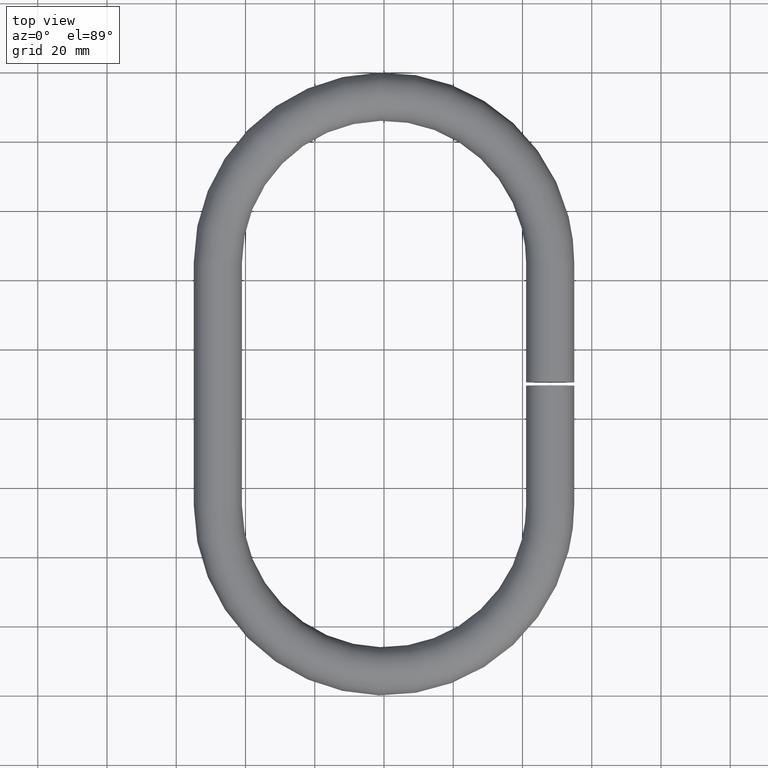
[diagram: clean part render]
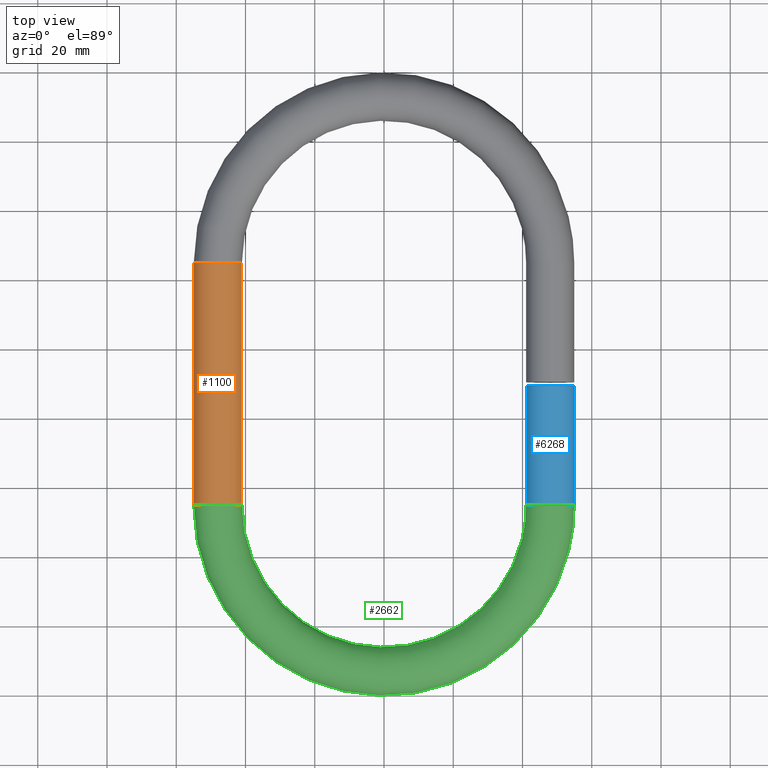
[diagram: same view with three faces highlighted in distinct colors, each labeled with its STEP entity id]
A machine part, top view with three faces highlighted in distinct colors.
Their STEP definitions:

[orange] entity #1100 — the highlighted cylindrical surface (bore or boss wall) has radius 7 mm, axis along (-0, 1, 0).
#3 = AXIS2_PLACEMENT_3D ( 'NONE', #5971, #1905, #3555 ) ;
#117 = EDGE_LOOP ( 'NONE', ( #6762 ) ) ;
#120 = DIRECTION ( 'NONE',  ( 6.123233995736766000E-017, -1.000000000000000000, 0.0000000000000000000 ) ) ;
#994 = DIRECTION ( 'NONE',  ( 0.0000000000000000000, 0.0000000000000000000, -1.000000000000000000 ) ) ;
#1100 = ADVANCED_FACE ( 'NONE', ( #8143, #7365 ), #3017, .T. ) ;
#1141 = EDGE_LOOP ( 'NONE', ( #10240 ) ) ;
#1644 = CARTESIAN_POINT ( 'NONE',  ( -48.00000000000000700, 124.9999999999999900, -7.000000000000000000 ) ) ;
#1699 = EDGE_CURVE ( 'NONE', #3299, #3299, #7486, .T. ) ;
#1905 = DIRECTION ( 'NONE',  ( -9.912705577010326800E-017, 1.000000000000000000, 0.0000000000000000000 ) ) ;
#2379 = AXIS2_PLACEMENT_3D ( 'NONE', #9881, #4929, #4861 ) ;
#3017 = CYLINDRICAL_SURFACE ( 'NONE', #3, 6.999999999999999100 ) ;
#3299 = VERTEX_POINT ( 'NONE', #1644 ) ;
#3555 = DIRECTION ( 'NONE',  ( -1.000000000000000000, 0.0000000000000000000, 0.0000000000000000000 ) ) ;
#4861 = DIRECTION ( 'NONE',  ( 0.0000000000000000000, 0.0000000000000000000, -1.000000000000000000 ) ) ;
#4929 = DIRECTION ( 'NONE',  ( 6.123233995736766000E-017, -1.000000000000000000, 0.0000000000000000000 ) ) ;
#5971 = CARTESIAN_POINT ( 'NONE',  ( -48.00000000000000000, 54.99999999999999300, 0.0000000000000000000 ) ) ;
#6286 = AXIS2_PLACEMENT_3D ( 'NONE', #7573, #120, #994 ) ;
#6762 = ORIENTED_EDGE ( 'NONE', *, *, #1699, .T. ) ;
#6893 = VERTEX_POINT ( 'NONE', #9921 ) ;
#7365 = FACE_OUTER_BOUND ( 'NONE', #117, .T. ) ;
#7486 = CIRCLE ( 'NONE', #6286, 7.000000000000000000 ) ;
#7537 = EDGE_CURVE ( 'NONE', #6893, #6893, #10209, .T. ) ;
#7573 = CARTESIAN_POINT ( 'NONE',  ( -48.00000000000000700, 124.9999999999999900, 0.0000000000000000000 ) ) ;
#8143 = FACE_OUTER_BOUND ( 'NONE', #1141, .T. ) ;
#9881 = CARTESIAN_POINT ( 'NONE',  ( -48.00000000000000000, 54.99999999999999300, 0.0000000000000000000 ) ) ;
#9921 = CARTESIAN_POINT ( 'NONE',  ( -48.00000000000000000, 54.99999999999999300, -7.000000000000000000 ) ) ;
#10209 = CIRCLE ( 'NONE', #2379, 7.000000000000000000 ) ;
#10240 = ORIENTED_EDGE ( 'NONE', *, *, #7537, .F. ) ;

[blue] entity #6268 — the highlighted cylindrical surface (bore or boss wall) has radius 7 mm, axis along (-0, -1, 0).
#210 = DIRECTION ( 'NONE',  ( 0.0000000000000000000, 0.0000000000000000000, -1.000000000000000000 ) ) ;
#845 = VERTEX_POINT ( 'NONE', #4938 ) ;
#944 = DIRECTION ( 'NONE',  ( 0.0000000000000000000, 0.0000000000000000000, -1.000000000000000000 ) ) ;
#1547 = CARTESIAN_POINT ( 'NONE',  ( 48.00000000000001400, 125.0000000000000000, 0.0000000000000000000 ) ) ;
#1864 = FACE_OUTER_BOUND ( 'NONE', #2572, .T. ) ;
#2569 = AXIS2_PLACEMENT_3D ( 'NONE', #3497, #4968, #944 ) ;
#2572 = EDGE_LOOP ( 'NONE', ( #4508 ) ) ;
#2796 = EDGE_CURVE ( 'NONE', #845, #845, #4750, .T. ) ;
#2814 = CARTESIAN_POINT ( 'NONE',  ( 48.00000000000000700, 89.50000000000000000, 0.0000000000000000000 ) ) ;
#3053 = ORIENTED_EDGE ( 'NONE', *, *, #3857, .T. ) ;
#3297 = EDGE_LOOP ( 'NONE', ( #3053 ) ) ;
#3319 = CIRCLE ( 'NONE', #6414, 7.000000000000000000 ) ;
#3497 = CARTESIAN_POINT ( 'NONE',  ( 48.00000000000000700, 54.99999999999999300, 0.0000000000000000000 ) ) ;
#3857 = EDGE_CURVE ( 'NONE', #9331, #9331, #3319, .T. ) ;
#4169 = CARTESIAN_POINT ( 'NONE',  ( 48.00000000000000700, 89.50000000000000000, -7.000000000000000000 ) ) ;
#4508 = ORIENTED_EDGE ( 'NONE', *, *, #2796, .T. ) ;
#4750 = CIRCLE ( 'NONE', #2569, 7.000000000000000000 ) ;
#4938 = CARTESIAN_POINT ( 'NONE',  ( 48.00000000000000700, 54.99999999999999300, -7.000000000000000000 ) ) ;
#4968 = DIRECTION ( 'NONE',  ( -1.836970198721029700E-016, 1.000000000000000000, 0.0000000000000000000 ) ) ;
#6268 = ADVANCED_FACE ( 'NONE', ( #1864, #9820 ), #10358, .T. ) ;
#6414 = AXIS2_PLACEMENT_3D ( 'NONE', #2814, #9259, #210 ) ;
#7188 = DIRECTION ( 'NONE',  ( 1.000000000000000000, 0.0000000000000000000, 0.0000000000000000000 ) ) ;
#8911 = AXIS2_PLACEMENT_3D ( 'NONE', #1547, #10446, #7188 ) ;
#9259 = DIRECTION ( 'NONE',  ( 0.0000000000000000000, -1.000000000000000000, 0.0000000000000000000 ) ) ;
#9331 = VERTEX_POINT ( 'NONE', #4169 ) ;
#9820 = FACE_OUTER_BOUND ( 'NONE', #3297, .T. ) ;
#10358 = CYLINDRICAL_SURFACE ( 'NONE', #8911, 6.999999999999999100 ) ;
#10446 = DIRECTION ( 'NONE',  ( -9.912705577010325500E-017, -1.000000000000000000, 0.0000000000000000000 ) ) ;

[green] entity #2662 — the highlighted toroidal blend (fillet) surface has major radius 48 mm and minor (blend) radius 7 mm.
#10 = TOROIDAL_SURFACE ( 'NONE', #9720, 48.00000000000000000, 7.000000000000000000 ) ;
#845 = VERTEX_POINT ( 'NONE', #4938 ) ;
#944 = DIRECTION ( 'NONE',  ( 0.0000000000000000000, 0.0000000000000000000, -1.000000000000000000 ) ) ;
#1369 = DIRECTION ( 'NONE',  ( 1.000000000000000000, 0.0000000000000000000, 0.0000000000000000000 ) ) ;
#2379 = AXIS2_PLACEMENT_3D ( 'NONE', #9881, #4929, #4861 ) ;
#2569 = AXIS2_PLACEMENT_3D ( 'NONE', #3497, #4968, #944 ) ;
#2662 = ADVANCED_FACE ( 'NONE', ( #7894, #8012 ), #10, .T. ) ;
#2796 = EDGE_CURVE ( 'NONE', #845, #845, #4750, .T. ) ;
#3137 = EDGE_LOOP ( 'NONE', ( #5354 ) ) ;
#3497 = CARTESIAN_POINT ( 'NONE',  ( 48.00000000000000700, 54.99999999999999300, 0.0000000000000000000 ) ) ;
#4520 = EDGE_LOOP ( 'NONE', ( #4587 ) ) ;
#4587 = ORIENTED_EDGE ( 'NONE', *, *, #7537, .T. ) ;
#4750 = CIRCLE ( 'NONE', #2569, 7.000000000000000000 ) ;
#4766 = DIRECTION ( 'NONE',  ( 0.0000000000000000000, 0.0000000000000000000, 1.000000000000000000 ) ) ;
#4861 = DIRECTION ( 'NONE',  ( 0.0000000000000000000, 0.0000000000000000000, -1.000000000000000000 ) ) ;
#4929 = DIRECTION ( 'NONE',  ( 6.123233995736766000E-017, -1.000000000000000000, 0.0000000000000000000 ) ) ;
#4938 = CARTESIAN_POINT ( 'NONE',  ( 48.00000000000000700, 54.99999999999999300, -7.000000000000000000 ) ) ;
#4968 = DIRECTION ( 'NONE',  ( -1.836970198721029700E-016, 1.000000000000000000, 0.0000000000000000000 ) ) ;
#5354 = ORIENTED_EDGE ( 'NONE', *, *, #2796, .F. ) ;
#6893 = VERTEX_POINT ( 'NONE', #9921 ) ;
#7537 = EDGE_CURVE ( 'NONE', #6893, #6893, #10209, .T. ) ;
#7894 = FACE_OUTER_BOUND ( 'NONE', #4520, .T. ) ;
#8012 = FACE_OUTER_BOUND ( 'NONE', #3137, .T. ) ;
#9706 = CARTESIAN_POINT ( 'NONE',  ( 0.0000000000000000000, 55.00000000000000000, 0.0000000000000000000 ) ) ;
#9720 = AXIS2_PLACEMENT_3D ( 'NONE', #9706, #4766, #1369 ) ;
#9881 = CARTESIAN_POINT ( 'NONE',  ( -48.00000000000000000, 54.99999999999999300, 0.0000000000000000000 ) ) ;
#9921 = CARTESIAN_POINT ( 'NONE',  ( -48.00000000000000000, 54.99999999999999300, -7.000000000000000000 ) ) ;
#10209 = CIRCLE ( 'NONE', #2379, 7.000000000000000000 ) ;